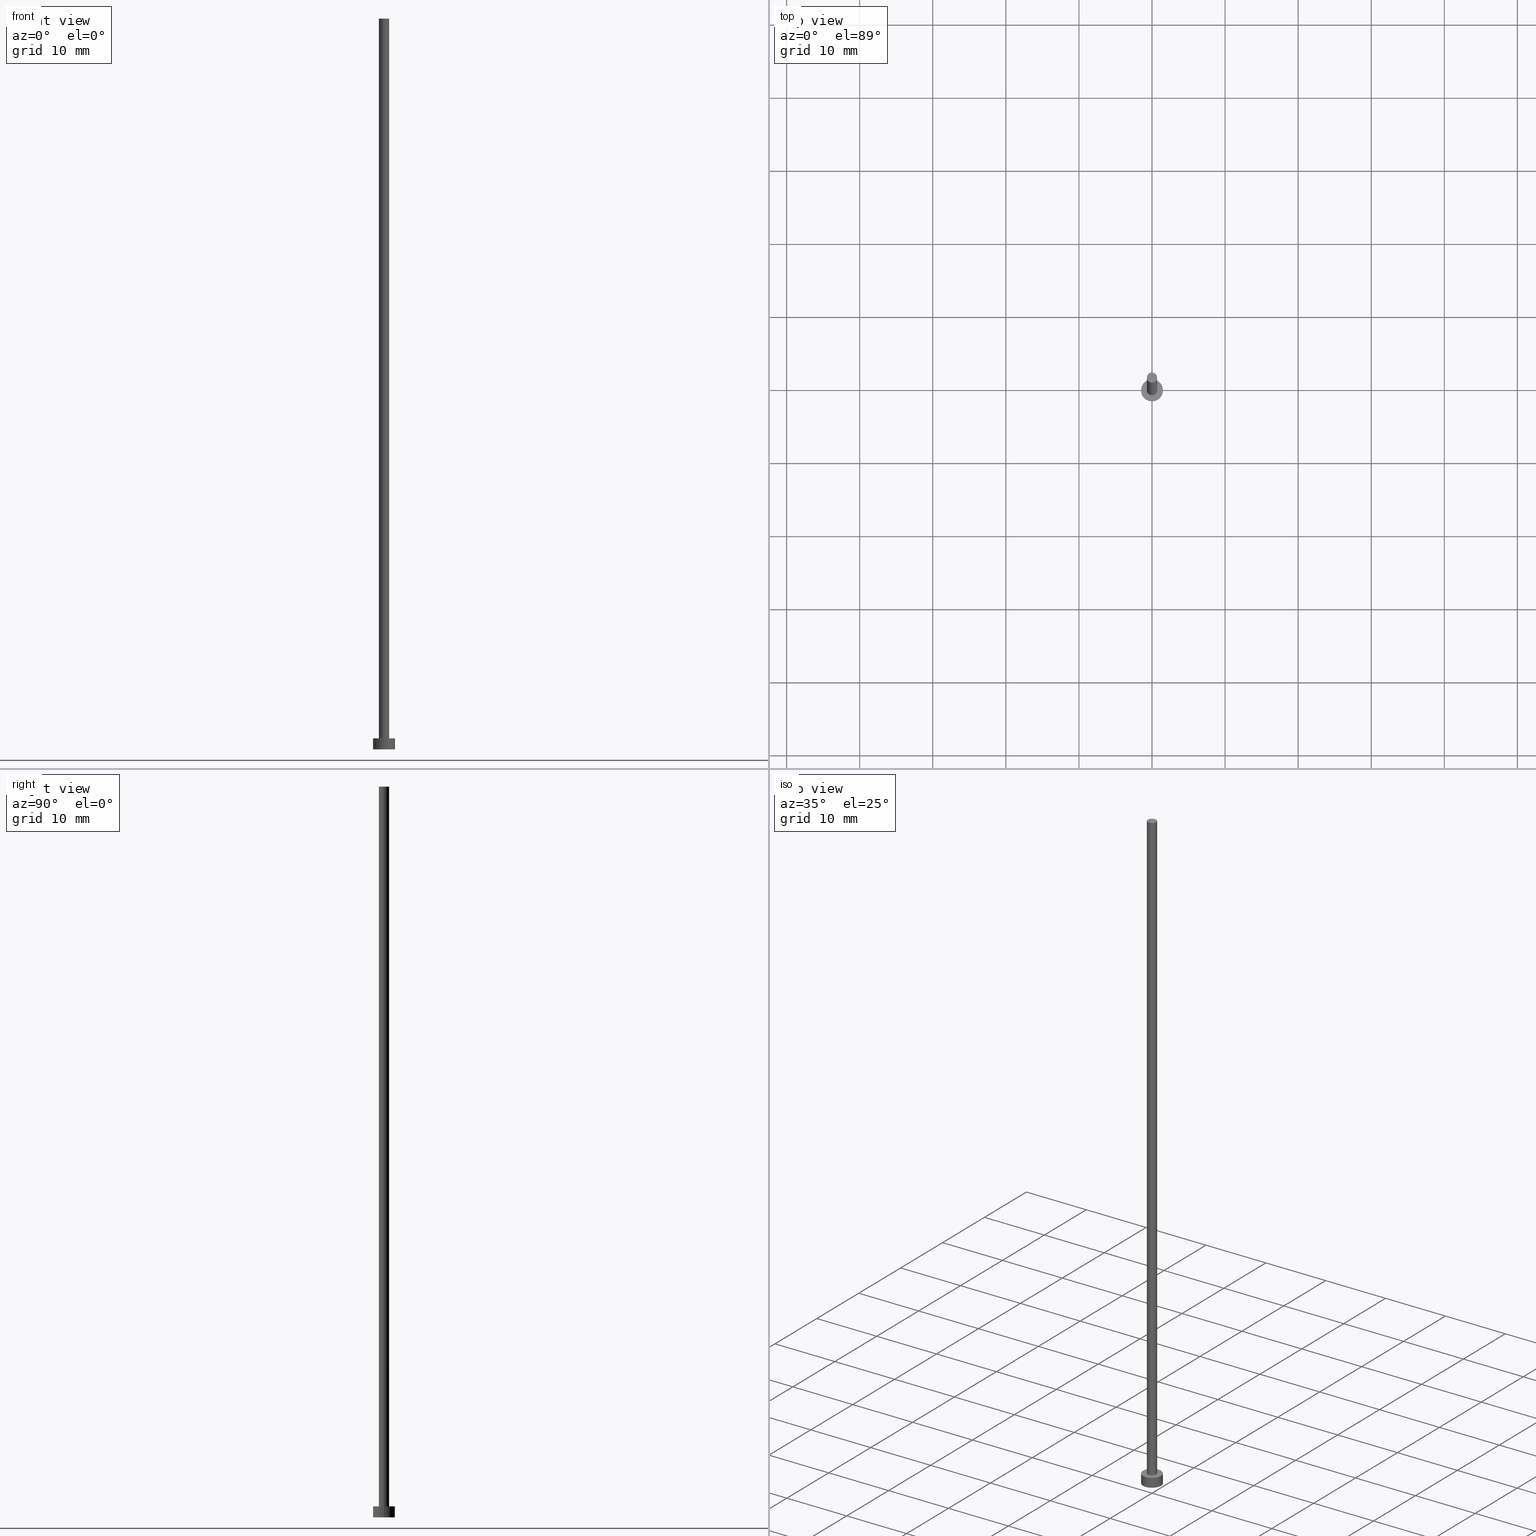
[diagram: canonical four-view strip — front | top / right | iso, engineering-drawing reading convention]
A machine part, canonical four-view strip (front | top / right | iso — engineering-drawing reading convention). The complete STEP part file that produces these views, byte-faithful:
ISO-10303-21;
HEADER;
FILE_DESCRIPTION (( 'STEP AP203' ),
    '1' );
FILE_NAME ('43ed.STEP',
    '2023-02-13T15:25:47',
    ( '' ),
    ( '' ),
    'SwSTEP 2.0',
    'SolidWorks 2019',
    '' );
FILE_SCHEMA (( 'CONFIG_CONTROL_DESIGN' ));
ENDSEC;

DATA;
#1 = DIRECTION ( 'NONE',  ( 1.000000000000000000, 0.000000000000000000, 0.000000000000000000 ) ) ;
#2 = DIRECTION ( 'NONE',  ( 1.000000000000000000, 0.000000000000000000, 0.000000000000000000 ) ) ;
#3 = APPROVAL ( #29, 'NEUR�EN�' ) ;
#4 = CARTESIAN_POINT ( 'NONE',  ( 0.6999999999999999556, 8.572527594031471957E-17, 100.0000000000000000 ) ) ;
#5 = DIRECTION ( 'NONE',  ( -0.000000000000000000, -0.000000000000000000, -1.000000000000000000 ) ) ;
#6 = CARTESIAN_POINT ( 'NONE',  ( 0.000000000000000000, 0.000000000000000000, 100.0000000000000000 ) ) ;
#7 = PRODUCT_DEFINITION_FORMATION_WITH_SPECIFIED_SOURCE ( 'LIBOVOLN�', '', #202, .NOT_KNOWN. ) ;
#8 = DIRECTION ( 'NONE',  ( 1.000000000000000000, 0.000000000000000000, -0.000000000000000000 ) ) ;
#9 = DIRECTION ( 'NONE',  ( 1.000000000000000000, 0.000000000000000000, -0.000000000000000000 ) ) ;
#10 = LINE ( 'NONE', #100, #196 ) ;
#11 = COORDINATED_UNIVERSAL_TIME_OFFSET ( 1, 0, .AHEAD. ) ;
#12 = APPROVAL_STATUS ( 'not_yet_approved' ) ;
#13 = APPROVAL_ROLE ( '' ) ;
#14 = COORDINATED_UNIVERSAL_TIME_OFFSET ( 1, 0, .AHEAD. ) ;
#15 = VERTEX_POINT ( 'NONE', #193 ) ;
#16 = CARTESIAN_POINT ( 'NONE',  ( 0.000000000000000000, 0.000000000000000000, 100.0000000000000000 ) ) ;
#17 = CYLINDRICAL_SURFACE ( 'NONE', #220, 0.6999999999999999556 ) ;
#18 = ORIENTED_EDGE ( 'NONE', *, *, #182, .F. ) ;
#19 = DIRECTION ( 'NONE',  ( -0.000000000000000000, -0.000000000000000000, -1.000000000000000000 ) ) ;
#20 = SECURITY_CLASSIFICATION ( '', '', #205 ) ;
#21 = DIRECTION ( 'NONE',  ( 0.000000000000000000, 0.000000000000000000, 1.000000000000000000 ) ) ;
#22 = EDGE_CURVE ( 'NONE', #172, #109, #234, .T. ) ;
#23 = DIRECTION ( 'NONE',  ( 1.000000000000000000, 0.000000000000000000, 0.000000000000000000 ) ) ;
#24 = DIRECTION ( 'NONE',  ( -1.000000000000000000, 0.000000000000000000, 0.000000000000000000 ) ) ;
#25 = AXIS2_PLACEMENT_3D ( 'NONE', #156, #136, #2 ) ;
#26 = CARTESIAN_POINT ( 'NONE',  ( 1.500000000000000222, 1.836970198721030181E-16, 0.000000000000000000 ) ) ;
#27 = MANIFOLD_SOLID_BREP ( 'P�idat vysunut�m3', #240 ) ;
#28 = EDGE_CURVE ( 'NONE', #254, #209, #135, .T. ) ;
#29 = APPROVAL_STATUS ( 'not_yet_approved' ) ;
#30 = VERTEX_POINT ( 'NONE', #155 ) ;
#31 = AXIS2_PLACEMENT_3D ( 'NONE', #175, #194, #151 ) ;
#32 = ORIENTED_EDGE ( 'NONE', *, *, #182, .T. ) ;
#33 = APPROVAL_DATE_TIME ( #144, #3 ) ;
#34 = PERSON_AND_ORGANIZATION_ROLE ( 'creator' ) ;
#35 = ORIENTED_EDGE ( 'NONE', *, *, #114, .T. ) ;
#36 = VECTOR ( 'NONE', #41, 1000.000000000000000 ) ;
#37 = DIRECTION ( 'NONE',  ( 0.000000000000000000, 0.000000000000000000, 1.000000000000000000 ) ) ;
#38 = PLANE ( 'NONE',  #107 ) ;
#39 = EDGE_LOOP ( 'NONE', ( #54, #32 ) ) ;
#40 = APPROVAL ( #12, 'NEUR�EN�' ) ;
#41 = DIRECTION ( 'NONE',  ( -0.000000000000000000, -0.000000000000000000, -1.000000000000000000 ) ) ;
#42 = ORIENTED_EDGE ( 'NONE', *, *, #95, .F. ) ;
#43 = EDGE_CURVE ( 'NONE', #15, #30, #48, .T. ) ;
#44 = LOCAL_TIME ( 16, 25, 47.00000000000000000, #11 ) ;
#45 =( NAMED_UNIT ( * ) PLANE_ANGLE_UNIT ( ) SI_UNIT ( $, .RADIAN. ) );
#46 = APPLICATION_CONTEXT ( 'configuration controlled 3d designs of mechanical parts and assemblies' ) ;
#47 = CARTESIAN_POINT ( 'NONE',  ( 0.000000000000000000, 0.000000000000000000, 0.000000000000000000 ) ) ;
#48 = CIRCLE ( 'NONE', #159, 0.6999999999999999556 ) ;
#49 = ADVANCED_FACE ( 'NONE', ( #171 ), #17, .T. ) ;
#50 = AXIS2_PLACEMENT_3D ( 'NONE', #6, #62, #8 ) ;
#51 = CARTESIAN_POINT ( 'NONE',  ( -1.500000000000000222, 0.000000000000000000, 1.500000000000000000 ) ) ;
#52 = PERSON_AND_ORGANIZATION_ROLE ( 'design_owner' ) ;
#53 = CALENDAR_DATE ( 2023, 13, 2 ) ;
#54 = ORIENTED_EDGE ( 'NONE', *, *, #66, .T. ) ;
#55 = PERSON_AND_ORGANIZATION_ROLE ( 'design_supplier' ) ;
#56 = FACE_OUTER_BOUND ( 'NONE', #39, .T. ) ;
#57 = ORIENTED_EDGE ( 'NONE', *, *, #251, .T. ) ;
#58 = CARTESIAN_POINT ( 'NONE',  ( 1.500000000000000222, 1.836970198721030181E-16, 1.500000000000000000 ) ) ;
#59 = PRODUCT_DEFINITION ( 'NEZN�M�', '', #7, #228 ) ;
#60 = DIRECTION ( 'NONE',  ( -0.000000000000000000, -0.000000000000000000, -1.000000000000000000 ) ) ;
#61 = FACE_OUTER_BOUND ( 'NONE', #184, .T. ) ;
#62 = DIRECTION ( 'NONE',  ( 0.000000000000000000, 0.000000000000000000, 1.000000000000000000 ) ) ;
#63 = DIRECTION ( 'NONE',  ( 0.000000000000000000, 0.000000000000000000, 1.000000000000000000 ) ) ;
#64 = CARTESIAN_POINT ( 'NONE',  ( 0.6999999999999999556, 8.572527594031471957E-17, 100.0000000000000000 ) ) ;
#65 = DIRECTION ( 'NONE',  ( 0.000000000000000000, 0.000000000000000000, 1.000000000000000000 ) ) ;
#66 = EDGE_CURVE ( 'NONE', #254, #133, #84, .T. ) ;
#67 = CARTESIAN_POINT ( 'NONE',  ( 0.000000000000000000, 0.000000000000000000, 100.0000000000000000 ) ) ;
#68 = ADVANCED_FACE ( 'NONE', ( #61 ), #134, .T. ) ;
#69 = DATE_AND_TIME ( #127, #132 ) ;
#70 = DATE_AND_TIME ( #73, #126 ) ;
#71 = CC_DESIGN_APPROVAL ( #3, ( #20 ) ) ;
#72 = EDGE_LOOP ( 'NONE', ( #189, #150 ) ) ;
#73 = CALENDAR_DATE ( 2023, 13, 2 ) ;
#74 = CC_DESIGN_PERSON_AND_ORGANIZATION_ASSIGNMENT ( #229, #223, ( #59 ) ) ;
#75 = ORIENTED_EDGE ( 'NONE', *, *, #66, .F. ) ;
#76 = AXIS2_PLACEMENT_3D ( 'NONE', #67, #121, #83 ) ;
#77 = ORIENTED_EDGE ( 'NONE', *, *, #95, .T. ) ;
#78 = EDGE_LOOP ( 'NONE', ( #97, #128 ) ) ;
#79 = AXIS2_PLACEMENT_3D ( 'NONE', #233, #60, #213 ) ;
#80 = CARTESIAN_POINT ( 'NONE',  ( -1.500000000000000222, 0.000000000000000000, 1.500000000000000000 ) ) ;
#81 = AXIS2_PLACEMENT_3D ( 'NONE', #239, #176, #23 ) ;
#82 = LINE ( 'NONE', #64, #211 ) ;
#83 = DIRECTION ( 'NONE',  ( 1.000000000000000000, 0.000000000000000000, 0.000000000000000000 ) ) ;
#84 = CIRCLE ( 'NONE', #225, 1.500000000000000222 ) ;
#85 = CYLINDRICAL_SURFACE ( 'NONE', #105, 1.500000000000000222 ) ;
#86 = ADVANCED_FACE ( 'NONE', ( #110, #56 ), #38, .T. ) ;
#87 = DIRECTION ( 'NONE',  ( 1.000000000000000000, 0.000000000000000000, 0.000000000000000000 ) ) ;
#88 = CARTESIAN_POINT ( 'NONE',  ( 0.000000000000000000, 0.000000000000000000, 0.000000000000000000 ) ) ;
#89 = ADVANCED_FACE ( 'NONE', ( #255 ), #99, .T. ) ;
#90 = PERSON_AND_ORGANIZATION ( #152, #111 ) ;
#91 = AXIS2_PLACEMENT_3D ( 'NONE', #88, #65, #9 ) ;
#92 = APPROVAL ( #249, 'NEUR�EN�' ) ;
#93 = EDGE_LOOP ( 'NONE', ( #113, #231 ) ) ;
#94 = DIRECTION ( 'NONE',  ( -0.000000000000000000, -0.000000000000000000, -1.000000000000000000 ) ) ;
#95 = EDGE_CURVE ( 'NONE', #133, #217, #232, .T. ) ;
#96 = CARTESIAN_POINT ( 'NONE',  ( 0.000000000000000000, 0.000000000000000000, 1.500000000000000000 ) ) ;
#97 = ORIENTED_EDGE ( 'NONE', *, *, #43, .F. ) ;
#98 = ORIENTED_EDGE ( 'NONE', *, *, #28, .T. ) ;
#99 = CYLINDRICAL_SURFACE ( 'NONE', #31, 0.6999999999999999556 ) ;
#100 = CARTESIAN_POINT ( 'NONE',  ( -0.6999999999999999556, 0.000000000000000000, 100.0000000000000000 ) ) ;
#101 = CC_DESIGN_PERSON_AND_ORGANIZATION_ASSIGNMENT ( #108, #52, ( #202 ) ) ;
#102 = PLANE ( 'NONE',  #91 ) ;
#103 = CARTESIAN_POINT ( 'NONE',  ( 1.500000000000000222, 1.836970198721030181E-16, 1.500000000000000000 ) ) ;
#104 = EDGE_LOOP ( 'NONE', ( #42, #75, #98, #146 ) ) ;
#105 = AXIS2_PLACEMENT_3D ( 'NONE', #197, #5, #24 ) ;
#106 = PERSON_AND_ORGANIZATION ( #152, #111 ) ;
#107 = AXIS2_PLACEMENT_3D ( 'NONE', #96, #169, #216 ) ;
#108 = PERSON_AND_ORGANIZATION ( #152, #111 ) ;
#109 = VERTEX_POINT ( 'NONE', #4 ) ;
#110 = FACE_BOUND ( 'NONE', #78, .T. ) ;
#111 = ORGANIZATION ( 'NEUR�EN�', 'NEUR�EN�', '' ) ;
#112 = ORIENTED_EDGE ( 'NONE', *, *, #114, .F. ) ;
#113 = ORIENTED_EDGE ( 'NONE', *, *, #119, .F. ) ;
#114 = EDGE_CURVE ( 'NONE', #109, #30, #82, .T. ) ;
#115 = ORIENTED_EDGE ( 'NONE', *, *, #162, .F. ) ;
#116 = CARTESIAN_POINT ( 'NONE',  ( 0.000000000000000000, 0.000000000000000000, 1.500000000000000000 ) ) ;
#117 = CIRCLE ( 'NONE', #140, 1.500000000000000222 ) ;
#118 = CARTESIAN_POINT ( 'NONE',  ( -0.6999999999999999556, 0.000000000000000000, 100.0000000000000000 ) ) ;
#119 = EDGE_CURVE ( 'NONE', #209, #217, #243, .T. ) ;
#120 = DIRECTION ( 'NONE',  ( 1.000000000000000000, 0.000000000000000000, 0.000000000000000000 ) ) ;
#121 = DIRECTION ( 'NONE',  ( 0.000000000000000000, 0.000000000000000000, 1.000000000000000000 ) ) ;
#122 = APPROVAL_PERSON_ORGANIZATION ( #90, #3, #13 ) ;
#123 =( NAMED_UNIT ( * ) SI_UNIT ( $, .STERADIAN. ) SOLID_ANGLE_UNIT ( ) );
#124 = CALENDAR_DATE ( 2023, 13, 2 ) ;
#125 = ORIENTED_EDGE ( 'NONE', *, *, #204, .F. ) ;
#126 = LOCAL_TIME ( 16, 25, 47.00000000000000000, #224 ) ;
#127 = CALENDAR_DATE ( 2023, 13, 2 ) ;
#128 = ORIENTED_EDGE ( 'NONE', *, *, #230, .F. ) ;
#129 = ADVANCED_FACE ( 'NONE', ( #199 ), #85, .T. ) ;
#130 = APPROVAL_ROLE ( '' ) ;
#131 = PERSON_AND_ORGANIZATION ( #152, #111 ) ;
#132 = LOCAL_TIME ( 16, 25, 47.00000000000000000, #164 ) ;
#133 = VERTEX_POINT ( 'NONE', #103 ) ;
#134 = CYLINDRICAL_SURFACE ( 'NONE', #79, 1.500000000000000222 ) ;
#135 = LINE ( 'NONE', #80, #180 ) ;
#136 = DIRECTION ( 'NONE',  ( 0.000000000000000000, 0.000000000000000000, 1.000000000000000000 ) ) ;
#137 = CC_DESIGN_PERSON_AND_ORGANIZATION_ASSIGNMENT ( #131, #244, ( #20 ) ) ;
#138 = DIRECTION ( 'NONE',  ( 0.000000000000000000, 0.000000000000000000, 1.000000000000000000 ) ) ;
#139 =( LENGTH_UNIT ( ) NAMED_UNIT ( * ) SI_UNIT ( .MILLI., .METRE. ) );
#140 = AXIS2_PLACEMENT_3D ( 'NONE', #116, #21, #87 ) ;
#141 = APPLICATION_PROTOCOL_DEFINITION ( 'international standard', 'config_control_design', 1994, #185 ) ;
#142 = DIRECTION ( 'NONE',  ( 0.000000000000000000, 0.000000000000000000, 1.000000000000000000 ) ) ;
#143 = CARTESIAN_POINT ( 'NONE',  ( -1.500000000000000222, 0.000000000000000000, 0.000000000000000000 ) ) ;
#144 = DATE_AND_TIME ( #165, #174 ) ;
#145 = ADVANCED_FACE ( 'NONE', ( #242 ), #102, .F. ) ;
#146 = ORIENTED_EDGE ( 'NONE', *, *, #119, .T. ) ;
#147 = APPROVAL_PERSON_ORGANIZATION ( #253, #92, #130 ) ;
#148 = ORIENTED_EDGE ( 'NONE', *, *, #28, .F. ) ;
#149 = APPLICATION_PROTOCOL_DEFINITION ( 'international standard', 'config_control_design', 1994, #46 ) ;
#150 = ORIENTED_EDGE ( 'NONE', *, *, #204, .T. ) ;
#151 = DIRECTION ( 'NONE',  ( -1.000000000000000000, 0.000000000000000000, 0.000000000000000000 ) ) ;
#152 = PERSON ( 'NEUR�EN�', 'NEUR�EN�', 'NEUR�EN�', ('NEUR�EN�'), ('NEUR�EN�'), ('NEUR�EN�') ) ;
#153 = DIRECTION ( 'NONE',  ( 1.000000000000000000, 0.000000000000000000, 0.000000000000000000 ) ) ;
#154 = CC_DESIGN_PERSON_AND_ORGANIZATION_ASSIGNMENT ( #183, #34, ( #7 ) ) ;
#155 = CARTESIAN_POINT ( 'NONE',  ( 0.6999999999999999556, 8.572527594031471957E-17, 1.500000000000000000 ) ) ;
#156 = CARTESIAN_POINT ( 'NONE',  ( 0.000000000000000000, 0.000000000000000000, 100.0000000000000000 ) ) ;
#157 = ADVANCED_FACE ( 'NONE', ( #160 ), #158, .T. ) ;
#158 = PLANE ( 'NONE',  #50 ) ;
#159 = AXIS2_PLACEMENT_3D ( 'NONE', #191, #138, #1 ) ;
#160 = FACE_OUTER_BOUND ( 'NONE', #72, .T. ) ;
#161 = CARTESIAN_POINT ( 'NONE',  ( 0.000000000000000000, 0.000000000000000000, 0.000000000000000000 ) ) ;
#162 = EDGE_CURVE ( 'NONE', #172, #15, #10, .T. ) ;
#163 = AXIS2_PLACEMENT_3D ( 'NONE', #47, #238, #201 ) ;
#164 = COORDINATED_UNIVERSAL_TIME_OFFSET ( 1, 0, .AHEAD. ) ;
#165 = CALENDAR_DATE ( 2023, 13, 2 ) ;
#166 = CIRCLE ( 'NONE', #81, 0.6999999999999999556 ) ;
#167 = SHAPE_DEFINITION_REPRESENTATION ( #248, #190 ) ;
#168 = EDGE_LOOP ( 'NONE', ( #112, #212, #195, #181 ) ) ;
#169 = DIRECTION ( 'NONE',  ( 0.000000000000000000, 0.000000000000000000, 1.000000000000000000 ) ) ;
#170 =( GEOMETRIC_REPRESENTATION_CONTEXT ( 3 ) GLOBAL_UNCERTAINTY_ASSIGNED_CONTEXT ( ( #246 ) ) GLOBAL_UNIT_ASSIGNED_CONTEXT ( ( #139, #45, #123 ) ) REPRESENTATION_CONTEXT ( 'NONE', 'WORKASPACE' ) );
#171 = FACE_OUTER_BOUND ( 'NONE', #173, .T. ) ;
#172 = VERTEX_POINT ( 'NONE', #118 ) ;
#173 = EDGE_LOOP ( 'NONE', ( #125, #35, #252, #115 ) ) ;
#174 = LOCAL_TIME ( 16, 25, 47.00000000000000000, #14 ) ;
#175 = CARTESIAN_POINT ( 'NONE',  ( 0.000000000000000000, 0.000000000000000000, 100.0000000000000000 ) ) ;
#176 = DIRECTION ( 'NONE',  ( 0.000000000000000000, 0.000000000000000000, 1.000000000000000000 ) ) ;
#177 = DIRECTION ( 'NONE',  ( -0.000000000000000000, -0.000000000000000000, -1.000000000000000000 ) ) ;
#178 = CC_DESIGN_PERSON_AND_ORGANIZATION_ASSIGNMENT ( #106, #55, ( #7 ) ) ;
#179 = CARTESIAN_POINT ( 'NONE',  ( 0.000000000000000000, 0.000000000000000000, 0.000000000000000000 ) ) ;
#180 = VECTOR ( 'NONE', #94, 1000.000000000000000 ) ;
#181 = ORIENTED_EDGE ( 'NONE', *, *, #43, .T. ) ;
#182 = EDGE_CURVE ( 'NONE', #133, #254, #117, .T. ) ;
#183 = PERSON_AND_ORGANIZATION ( #152, #111 ) ;
#184 = EDGE_LOOP ( 'NONE', ( #18, #77, #57, #148 ) ) ;
#185 = APPLICATION_CONTEXT ( 'configuration controlled 3d designs of mechanical parts and assemblies' ) ;
#186 = DATE_TIME_ROLE ( 'classification_date' ) ;
#187 = CIRCLE ( 'NONE', #76, 0.6999999999999999556 ) ;
#188 = CC_DESIGN_DATE_AND_TIME_ASSIGNMENT ( #203, #186, ( #20 ) ) ;
#189 = ORIENTED_EDGE ( 'NONE', *, *, #22, .T. ) ;
#190 = ADVANCED_BREP_SHAPE_REPRESENTATION ( '43ed', ( #27, #206 ), #170 ) ;
#191 = CARTESIAN_POINT ( 'NONE',  ( 0.000000000000000000, 0.000000000000000000, 1.500000000000000000 ) ) ;
#192 = CC_DESIGN_APPROVAL ( #40, ( #59 ) ) ;
#193 = CARTESIAN_POINT ( 'NONE',  ( -0.6999999999999999556, 0.000000000000000000, 1.500000000000000000 ) ) ;
#194 = DIRECTION ( 'NONE',  ( -0.000000000000000000, -0.000000000000000000, -1.000000000000000000 ) ) ;
#195 = ORIENTED_EDGE ( 'NONE', *, *, #162, .T. ) ;
#196 = VECTOR ( 'NONE', #198, 1000.000000000000000 ) ;
#197 = CARTESIAN_POINT ( 'NONE',  ( 0.000000000000000000, 0.000000000000000000, 1.500000000000000000 ) ) ;
#198 = DIRECTION ( 'NONE',  ( -0.000000000000000000, -0.000000000000000000, -1.000000000000000000 ) ) ;
#199 = FACE_OUTER_BOUND ( 'NONE', #104, .T. ) ;
#200 = CC_DESIGN_DATE_AND_TIME_ASSIGNMENT ( #226, #207, ( #59 ) ) ;
#201 = DIRECTION ( 'NONE',  ( 1.000000000000000000, 0.000000000000000000, 0.000000000000000000 ) ) ;
#202 = PRODUCT ( '43ed', '43ed', '', ( #219 ) ) ;
#203 = DATE_AND_TIME ( #124, #245 ) ;
#204 = EDGE_CURVE ( 'NONE', #109, #172, #187, .T. ) ;
#205 = SECURITY_CLASSIFICATION_LEVEL ( 'unclassified' ) ;
#206 = AXIS2_PLACEMENT_3D ( 'NONE', #179, #142, #120 ) ;
#207 = DATE_TIME_ROLE ( 'creation_date' ) ;
#208 = APPROVAL_ROLE ( '' ) ;
#209 = VERTEX_POINT ( 'NONE', #143 ) ;
#210 = COORDINATED_UNIVERSAL_TIME_OFFSET ( 1, 0, .AHEAD. ) ;
#211 = VECTOR ( 'NONE', #177, 1000.000000000000000 ) ;
#212 = ORIENTED_EDGE ( 'NONE', *, *, #22, .F. ) ;
#213 = DIRECTION ( 'NONE',  ( -1.000000000000000000, 0.000000000000000000, 0.000000000000000000 ) ) ;
#214 = DIRECTION ( 'NONE',  ( -1.000000000000000000, 0.000000000000000000, 0.000000000000000000 ) ) ;
#215 = CC_DESIGN_SECURITY_CLASSIFICATION ( #20, ( #7 ) ) ;
#216 = DIRECTION ( 'NONE',  ( 1.000000000000000000, 0.000000000000000000, -0.000000000000000000 ) ) ;
#217 = VERTEX_POINT ( 'NONE', #26 ) ;
#218 = AXIS2_PLACEMENT_3D ( 'NONE', #161, #63, #221 ) ;
#219 = MECHANICAL_CONTEXT ( 'NONE', #185, 'mechanical' ) ;
#220 = AXIS2_PLACEMENT_3D ( 'NONE', #16, #19, #214 ) ;
#221 = DIRECTION ( 'NONE',  ( 1.000000000000000000, 0.000000000000000000, 0.000000000000000000 ) ) ;
#222 = CIRCLE ( 'NONE', #218, 1.500000000000000222 ) ;
#223 = PERSON_AND_ORGANIZATION_ROLE ( 'creator' ) ;
#224 = COORDINATED_UNIVERSAL_TIME_OFFSET ( 1, 0, .AHEAD. ) ;
#225 = AXIS2_PLACEMENT_3D ( 'NONE', #236, #37, #153 ) ;
#226 = DATE_AND_TIME ( #53, #44 ) ;
#227 = PERSON_AND_ORGANIZATION ( #152, #111 ) ;
#228 = DESIGN_CONTEXT ( 'detailed design', #46, 'design' ) ;
#229 = PERSON_AND_ORGANIZATION ( #152, #111 ) ;
#230 = EDGE_CURVE ( 'NONE', #30, #15, #166, .T. ) ;
#231 = ORIENTED_EDGE ( 'NONE', *, *, #251, .F. ) ;
#232 = LINE ( 'NONE', #58, #36 ) ;
#233 = CARTESIAN_POINT ( 'NONE',  ( 0.000000000000000000, 0.000000000000000000, 1.500000000000000000 ) ) ;
#234 = CIRCLE ( 'NONE', #25, 0.6999999999999999556 ) ;
#235 = CC_DESIGN_APPROVAL ( #92, ( #7 ) ) ;
#236 = CARTESIAN_POINT ( 'NONE',  ( 0.000000000000000000, 0.000000000000000000, 1.500000000000000000 ) ) ;
#237 = PRODUCT_RELATED_PRODUCT_CATEGORY ( 'detail', '', ( #202 ) ) ;
#238 = DIRECTION ( 'NONE',  ( 0.000000000000000000, 0.000000000000000000, 1.000000000000000000 ) ) ;
#239 = CARTESIAN_POINT ( 'NONE',  ( 0.000000000000000000, 0.000000000000000000, 1.500000000000000000 ) ) ;
#240 = CLOSED_SHELL ( 'NONE', ( #49, #68, #129, #86, #145, #89, #157 ) ) ;
#241 = APPROVAL_PERSON_ORGANIZATION ( #227, #40, #208 ) ;
#242 = FACE_OUTER_BOUND ( 'NONE', #93, .T. ) ;
#243 = CIRCLE ( 'NONE', #163, 1.500000000000000222 ) ;
#244 = PERSON_AND_ORGANIZATION_ROLE ( 'classification_officer' ) ;
#245 = LOCAL_TIME ( 16, 25, 47.00000000000000000, #210 ) ;
#246 = UNCERTAINTY_MEASURE_WITH_UNIT (LENGTH_MEASURE( 1.000000000000000082E-05 ), #139, 'distance_accuracy_value', 'NONE');
#247 = APPROVAL_DATE_TIME ( #69, #92 ) ;
#248 = PRODUCT_DEFINITION_SHAPE ( 'NONE', 'NONE',  #59 ) ;
#249 = APPROVAL_STATUS ( 'not_yet_approved' ) ;
#250 = APPROVAL_DATE_TIME ( #70, #40 ) ;
#251 = EDGE_CURVE ( 'NONE', #217, #209, #222, .T. ) ;
#252 = ORIENTED_EDGE ( 'NONE', *, *, #230, .T. ) ;
#253 = PERSON_AND_ORGANIZATION ( #152, #111 ) ;
#254 = VERTEX_POINT ( 'NONE', #51 ) ;
#255 = FACE_OUTER_BOUND ( 'NONE', #168, .T. ) ;
ENDSEC;
END-ISO-10303-21;
